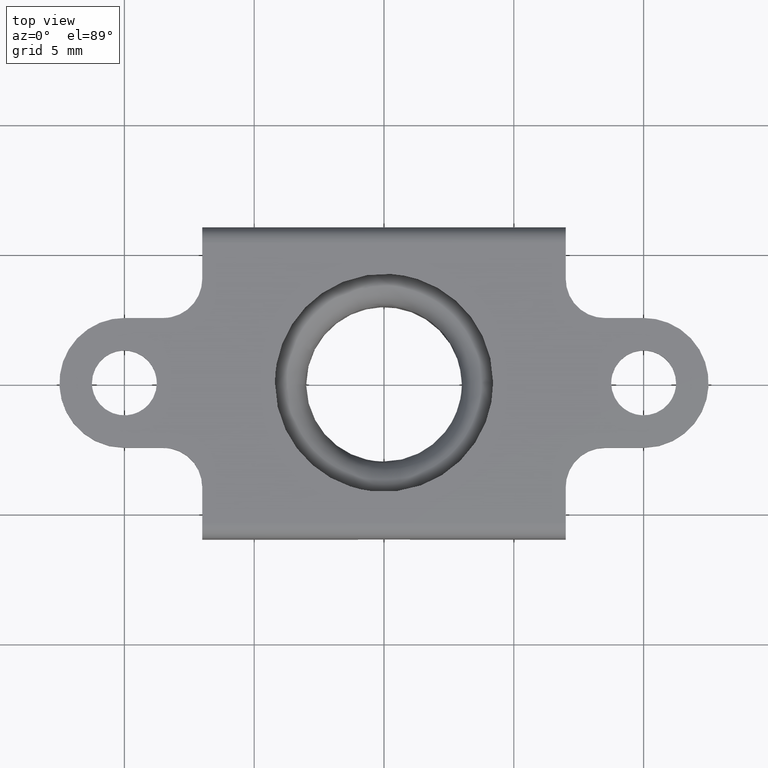
[diagram: clean part render]
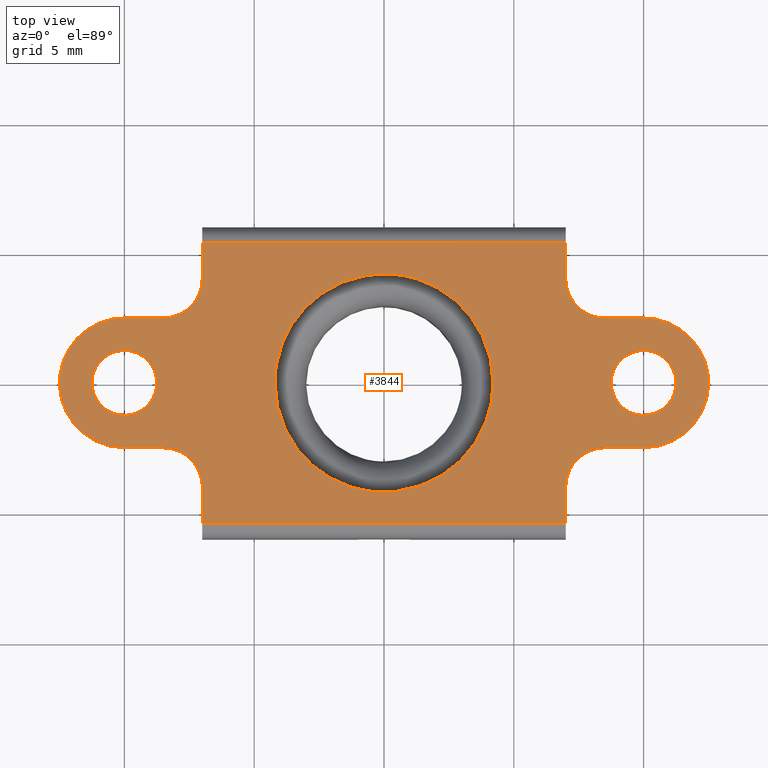
[diagram: same view with one face highlighted and labeled with its STEP entity id]
A machine part, top view. The second image highlights one B-rep face of the part: STEP entity #3844.
In plain terms, the highlighted face is a freeform B-spline surface patch.
Its self-contained STEP definition (entity closure, byte-faithful):
#1407=CARTESIAN_POINT('',(-0.495743785576096,-4.170640010725293,1.952107E-017));
#1408=VERTEX_POINT('',#1407);
#1409=CARTESIAN_POINT('',(4.200000000000000,0.0,0.0));
#1410=VERTEX_POINT('',#1409);
#1411=CARTESIAN_POINT('',(-0.495743785576096,-4.170640010725293,1.952107E-017));
#1412=CARTESIAN_POINT('',(-0.248741302555920,-4.200000000000000,0.0));
#1413=CARTESIAN_POINT('',(0.0,-4.200000000000000,0.0));
#1414=CARTESIAN_POINT('',(4.200000000000000,-4.200000000000000,0.0));
#1415=CARTESIAN_POINT('',(4.200000000000000,0.0,0.0));
#1423=(BOUNDED_CURVE()B_SPLINE_CURVE(2,(#1411,#1412,#1413,#1414,#1415),.UNSPECIFIED.,.F.,.U.)B_SPLINE_CURVE_WITH_KNOTS((3,2,3),(0.229562473514209,0.250000000000000,0.500000000000000),.UNSPECIFIED.)CURVE()GEOMETRIC_REPRESENTATION_ITEM()RATIONAL_B_SPLINE_CURVE((0.956026754185072,0.976055948331966,1.0,0.707106781186548,1.0))REPRESENTATION_ITEM(''));
#1424=EDGE_CURVE('',#1408,#1410,#1423,.T.);
#1426=CARTESIAN_POINT('',(0.256403866068306,4.192166153370501,1.994932E-017));
#1427=VERTEX_POINT('',#1426);
#1428=CARTESIAN_POINT('',(4.200000000000000,0.0,0.0));
#1429=CARTESIAN_POINT('',(4.200000000000000,3.950965480962529,0.0));
#1430=CARTESIAN_POINT('',(0.256403866068306,4.192166153370501,1.994932E-017));
#1438=(BOUNDED_CURVE()B_SPLINE_CURVE(2,(#1428,#1429,#1430),.UNSPECIFIED.,.F.,.U.)B_SPLINE_CURVE_WITH_KNOTS((3,3),(0.500000000000000,0.739332962240164),.UNSPECIFIED.)CURVE()GEOMETRIC_REPRESENTATION_ITEM()RATIONAL_B_SPLINE_CURVE((1.0,0.719603993285279,0.976072041669335))REPRESENTATION_ITEM(''));
#1439=EDGE_CURVE('',#1410,#1427,#1438,.T.);
#1506=CARTESIAN_POINT('',(-4.200000000000000,0.0,0.0));
#1507=VERTEX_POINT('',#1506);
#1508=CARTESIAN_POINT('',(-4.200000000000000,0.0,0.0));
#1509=CARTESIAN_POINT('',(-4.200000000000000,-3.730333008963838,0.0));
#1510=CARTESIAN_POINT('',(-0.495743785576096,-4.170640010725293,1.952107E-017));
#1518=(BOUNDED_CURVE()B_SPLINE_CURVE(2,(#1508,#1509,#1510),.UNSPECIFIED.,.F.,.U.)B_SPLINE_CURVE_WITH_KNOTS((3,3),(0.0,0.229562473514209),.UNSPECIFIED.)CURVE()GEOMETRIC_REPRESENTATION_ITEM()RATIONAL_B_SPLINE_CURVE((1.0,0.731050832854582,0.956026754185072))REPRESENTATION_ITEM(''));
#1519=EDGE_CURVE('',#1507,#1408,#1518,.T.);
#1553=CARTESIAN_POINT('',(0.256403866068306,4.192166153370501,1.994932E-017));
#1554=CARTESIAN_POINT('',(0.128321605876041,4.200000000000000,0.0));
#1555=CARTESIAN_POINT('',(0.0,4.200000000000000,0.0));
#1556=CARTESIAN_POINT('',(-4.200000000000000,4.200000000000000,0.0));
#1557=CARTESIAN_POINT('',(-4.200000000000000,0.0,0.0));
#1565=(BOUNDED_CURVE()B_SPLINE_CURVE(2,(#1553,#1554,#1555,#1556,#1557),.UNSPECIFIED.,.F.,.U.)B_SPLINE_CURVE_WITH_KNOTS((3,2,3),(0.739332962240165,0.750000000000000,1.0),.UNSPECIFIED.)CURVE()GEOMETRIC_REPRESENTATION_ITEM()RATIONAL_B_SPLINE_CURVE((0.976072041669337,0.987502787901269,1.0,0.707106781186548,1.0))REPRESENTATION_ITEM(''));
#1566=EDGE_CURVE('',#1427,#1507,#1565,.T.);
#1589=CARTESIAN_POINT('',(-11.250000000000000,0.0,0.0));
#1590=VERTEX_POINT('',#1589);
#1591=CARTESIAN_POINT('',(-10.098073869720260,1.246146667161652,1.994932E-017));
#1592=VERTEX_POINT('',#1591);
#1593=CARTESIAN_POINT('',(-11.250000000000000,0.0,0.0));
#1594=CARTESIAN_POINT('',(-11.249999999999998,1.155488114460305,0.0));
#1595=CARTESIAN_POINT('',(-10.098073869720258,1.246146667161653,1.994932E-017));
#1603=(BOUNDED_CURVE()B_SPLINE_CURVE(2,(#1593,#1594,#1595),.UNSPECIFIED.,.F.,.U.)B_SPLINE_CURVE_WITH_KNOTS((3,3),(0.0,0.236331300616135),.UNSPECIFIED.)CURVE()GEOMETRIC_REPRESENTATION_ITEM()RATIONAL_B_SPLINE_CURVE((1.0,0.723120658624682,0.969723356137106))REPRESENTATION_ITEM(''));
#1604=EDGE_CURVE('',#1590,#1592,#1603,.T.);
#1606=CARTESIAN_POINT('',(-9.901926130279740,-1.246146667161652,1.994932E-017));
#1607=VERTEX_POINT('',#1606);
#1608=CARTESIAN_POINT('',(-9.901926130279740,-1.246146667161652,1.994932E-017));
#1609=CARTESIAN_POINT('',(-9.950887366179682,-1.250000000000000,0.0));
#1610=CARTESIAN_POINT('',(-10.0,-1.250000000000000,0.0));
#1611=CARTESIAN_POINT('',(-11.249999999999998,-1.250000000000000,0.0));
#1612=CARTESIAN_POINT('',(-11.250000000000000,0.0,0.0));
#1620=(BOUNDED_CURVE()B_SPLINE_CURVE(2,(#1608,#1609,#1610,#1611,#1612),.UNSPECIFIED.,.F.,.U.)B_SPLINE_CURVE_WITH_KNOTS((3,2,3),(0.736331300616135,0.750000000000000,1.0),.UNSPECIFIED.)CURVE()GEOMETRIC_REPRESENTATION_ITEM()RATIONAL_B_SPLINE_CURVE((0.969723356137106,0.983986122561865,1.0,0.707106781186548,1.0))REPRESENTATION_ITEM(''));
#1621=EDGE_CURVE('',#1607,#1590,#1620,.T.);
#1688=CARTESIAN_POINT('',(-8.750000000000000,0.0,0.0));
#1689=VERTEX_POINT('',#1688);
#1690=CARTESIAN_POINT('',(-10.098073869720258,1.246146667161653,1.994932E-017));
#1691=CARTESIAN_POINT('',(-10.049112633820320,1.250000000000000,0.0));
#1692=CARTESIAN_POINT('',(-10.0,1.250000000000000,0.0));
#1693=CARTESIAN_POINT('',(-8.750000000000000,1.250000000000000,0.0));
#1694=CARTESIAN_POINT('',(-8.750000000000000,0.0,0.0));
#1702=(BOUNDED_CURVE()B_SPLINE_CURVE(2,(#1690,#1691,#1692,#1693,#1694),.UNSPECIFIED.,.F.,.U.)B_SPLINE_CURVE_WITH_KNOTS((3,2,3),(0.236331300616135,0.250000000000000,0.500000000000000),.UNSPECIFIED.)CURVE()GEOMETRIC_REPRESENTATION_ITEM()RATIONAL_B_SPLINE_CURVE((0.969723356137106,0.983986122561865,1.0,0.707106781186548,1.0))REPRESENTATION_ITEM(''));
#1703=EDGE_CURVE('',#1592,#1689,#1702,.T.);
#1737=CARTESIAN_POINT('',(-8.750000000000000,0.0,0.0));
#1738=CARTESIAN_POINT('',(-8.750000000000000,-1.155488114460304,0.0));
#1739=CARTESIAN_POINT('',(-9.901926130279740,-1.246146667161652,1.994932E-017));
#1747=(BOUNDED_CURVE()B_SPLINE_CURVE(2,(#1737,#1738,#1739),.UNSPECIFIED.,.F.,.U.)B_SPLINE_CURVE_WITH_KNOTS((3,3),(0.500000000000000,0.736331300616135),.UNSPECIFIED.)CURVE()GEOMETRIC_REPRESENTATION_ITEM()RATIONAL_B_SPLINE_CURVE((1.0,0.723120658624682,0.969723356137106))REPRESENTATION_ITEM(''));
#1748=EDGE_CURVE('',#1689,#1607,#1747,.T.);
#1775=CARTESIAN_POINT('',(10.147542793330750,1.241261907953418,1.952107E-017));
#1776=VERTEX_POINT('',#1775);
#1777=CARTESIAN_POINT('',(8.750000000000000,0.0,0.0));
#1778=VERTEX_POINT('',#1777);
#1779=CARTESIAN_POINT('',(10.147542793330754,1.241261907953418,1.952107E-017));
#1780=CARTESIAN_POINT('',(10.074030149574796,1.250000000000000,0.0));
#1781=CARTESIAN_POINT('',(10.0,1.250000000000000,0.0));
#1782=CARTESIAN_POINT('',(8.750000000000000,1.250000000000000,0.0));
#1783=CARTESIAN_POINT('',(8.750000000000000,0.0,0.0));
#1791=(BOUNDED_CURVE()B_SPLINE_CURVE(2,(#1779,#1780,#1781,#1782,#1783),.UNSPECIFIED.,.F.,.U.)B_SPLINE_CURVE_WITH_KNOTS((3,2,3),(0.229562473512974,0.250000000000000,0.500000000000000),.UNSPECIFIED.)CURVE()GEOMETRIC_REPRESENTATION_ITEM()RATIONAL_B_SPLINE_CURVE((0.956026754182653,0.976055948330520,1.0,0.707106781186548,1.0))REPRESENTATION_ITEM(''));
#1792=EDGE_CURVE('',#1776,#1778,#1791,.T.);
#1794=CARTESIAN_POINT('',(9.923689325516412,-1.247668498023357,1.994932E-017));
#1795=VERTEX_POINT('',#1794);
#1796=CARTESIAN_POINT('',(8.750000000000000,0.0,0.0));
#1797=CARTESIAN_POINT('',(8.750000000000000,-1.175882583509342,0.0));
#1798=CARTESIAN_POINT('',(9.923689325516412,-1.247668498023357,1.994932E-017));
#1806=(BOUNDED_CURVE()B_SPLINE_CURVE(2,(#1796,#1797,#1798),.UNSPECIFIED.,.F.,.U.)B_SPLINE_CURVE_WITH_KNOTS((3,3),(0.500000000000000,0.739332962223986),.UNSPECIFIED.)CURVE()GEOMETRIC_REPRESENTATION_ITEM()RATIONAL_B_SPLINE_CURVE((1.0,0.719603993304233,0.976072041634662))REPRESENTATION_ITEM(''));
#1807=EDGE_CURVE('',#1778,#1795,#1806,.T.);
#1874=CARTESIAN_POINT('',(11.250000000000000,0.0,0.0));
#1875=VERTEX_POINT('',#1874);
#1876=CARTESIAN_POINT('',(11.250000000000000,0.0,0.0));
#1877=CARTESIAN_POINT('',(11.250000000000000,1.110218157421547,0.0));
#1878=CARTESIAN_POINT('',(10.147542793330754,1.241261907953417,1.952107E-017));
#1886=(BOUNDED_CURVE()B_SPLINE_CURVE(2,(#1876,#1877,#1878),.UNSPECIFIED.,.F.,.U.)B_SPLINE_CURVE_WITH_KNOTS((3,3),(0.0,0.229562473512974),.UNSPECIFIED.)CURVE()GEOMETRIC_REPRESENTATION_ITEM()RATIONAL_B_SPLINE_CURVE((1.0,0.731050832856028,0.956026754182653))REPRESENTATION_ITEM(''));
#1887=EDGE_CURVE('',#1875,#1776,#1886,.T.);
#1921=CARTESIAN_POINT('',(9.923689325516412,-1.247668498023357,1.994932E-017));
#1922=CARTESIAN_POINT('',(9.961809045811563,-1.250000000000000,0.0));
#1923=CARTESIAN_POINT('',(10.0,-1.250000000000000,0.0));
#1924=CARTESIAN_POINT('',(11.249999999999998,-1.250000000000000,0.0));
#1925=CARTESIAN_POINT('',(11.250000000000000,0.0,0.0));
#1933=(BOUNDED_CURVE()B_SPLINE_CURVE(2,(#1921,#1922,#1923,#1924,#1925),.UNSPECIFIED.,.F.,.U.)B_SPLINE_CURVE_WITH_KNOTS((3,2,3),(0.739332962223985,0.750000000000000,1.0),.UNSPECIFIED.)CURVE()GEOMETRIC_REPRESENTATION_ITEM()RATIONAL_B_SPLINE_CURVE((0.976072041634660,0.987502787882313,1.0,0.707106781186548,1.0))REPRESENTATION_ITEM(''));
#1934=EDGE_CURVE('',#1795,#1875,#1933,.T.);
#2199=CARTESIAN_POINT('',(-7.0,-5.400000000000000,-3.306437E-016));
#2200=VERTEX_POINT('',#2199);
#2221=CARTESIAN_POINT('',(7.0,-5.400000000000000,-3.306437E-016));
#2222=VERTEX_POINT('',#2221);
#2236=CARTESIAN_POINT('',(-7.0,-5.400000000000000,-3.306437E-016));
#2237=CARTESIAN_POINT('',(7.0,-5.400000000000000,-3.306437E-016));
#2238=QUASI_UNIFORM_CURVE('',1,(#2236,#2237),.UNSPECIFIED.,.F.,.U.);
#2239=EDGE_CURVE('',#2200,#2222,#2238,.T.);
#2258=CARTESIAN_POINT('',(-7.0,5.400000000000000,3.306437E-016));
#2259=VERTEX_POINT('',#2258);
#2275=CARTESIAN_POINT('',(7.0,5.400000000000000,3.306437E-016));
#2276=VERTEX_POINT('',#2275);
#2277=CARTESIAN_POINT('',(7.0,5.400000000000000,3.306437E-016));
#2278=CARTESIAN_POINT('',(-7.0,5.400000000000000,3.306437E-016));
#2279=QUASI_UNIFORM_CURVE('',1,(#2277,#2278),.UNSPECIFIED.,.F.,.U.);
#2280=EDGE_CURVE('',#2276,#2259,#2279,.T.);
#3276=CARTESIAN_POINT('',(-8.500000000000000,2.499999999999800,-3.306437E-016));
#3277=VERTEX_POINT('',#3276);
#3283=CARTESIAN_POINT('',(-7.0,3.999999999999800,2.449213E-016));
#3284=VERTEX_POINT('',#3283);
#3285=CARTESIAN_POINT('',(-7.000000000000001,3.999999999999800,2.449213E-016));
#3286=CARTESIAN_POINT('',(-6.999999999999999,2.499999999999799,2.449213E-016));
#3287=CARTESIAN_POINT('',(-8.500000000000000,2.499999999999800,2.449213E-016));
#3295=(BOUNDED_CURVE()B_SPLINE_CURVE(2,(#3285,#3286,#3287),.UNSPECIFIED.,.F.,.U.)CURVE()GEOMETRIC_REPRESENTATION_ITEM()QUASI_UNIFORM_CURVE()RATIONAL_B_SPLINE_CURVE((1.0,0.707106781186548,1.0))REPRESENTATION_ITEM(''));
#3296=EDGE_CURVE('',#3284,#3277,#3295,.T.);
#3337=CARTESIAN_POINT('',(-7.0,-4.000000000000100,-2.449213E-016));
#3338=VERTEX_POINT('',#3337);
#3344=CARTESIAN_POINT('',(-8.500000000000000,-2.500000000000100,-3.306437E-016));
#3345=VERTEX_POINT('',#3344);
#3346=CARTESIAN_POINT('',(-8.500000000000000,-2.500000000000100,0.0));
#3347=CARTESIAN_POINT('',(-6.999999999999999,-2.500000000000100,0.0));
#3348=CARTESIAN_POINT('',(-7.000000000000001,-4.000000000000100,0.0));
#3356=(BOUNDED_CURVE()B_SPLINE_CURVE(2,(#3346,#3347,#3348),.UNSPECIFIED.,.F.,.U.)CURVE()GEOMETRIC_REPRESENTATION_ITEM()QUASI_UNIFORM_CURVE()RATIONAL_B_SPLINE_CURVE((1.0,0.707106781186548,1.0))REPRESENTATION_ITEM(''));
#3357=EDGE_CURVE('',#3345,#3338,#3356,.T.);
#3398=CARTESIAN_POINT('',(8.500000000000000,-2.500000000000100,-3.306437E-016));
#3399=VERTEX_POINT('',#3398);
#3405=CARTESIAN_POINT('',(7.0,-4.000000000000100,-2.449213E-016));
#3406=VERTEX_POINT('',#3405);
#3407=CARTESIAN_POINT('',(7.000000000000001,-4.000000000000100,-2.449213E-016));
#3408=CARTESIAN_POINT('',(6.999999999999999,-2.500000000000100,-2.449213E-016));
#3409=CARTESIAN_POINT('',(8.500000000000000,-2.500000000000100,-2.449213E-016));
#3417=(BOUNDED_CURVE()B_SPLINE_CURVE(2,(#3407,#3408,#3409),.UNSPECIFIED.,.F.,.U.)CURVE()GEOMETRIC_REPRESENTATION_ITEM()QUASI_UNIFORM_CURVE()RATIONAL_B_SPLINE_CURVE((1.0,0.707106781186548,1.0))REPRESENTATION_ITEM(''));
#3418=EDGE_CURVE('',#3406,#3399,#3417,.T.);
#3459=CARTESIAN_POINT('',(7.0,3.999999999999800,2.449213E-016));
#3460=VERTEX_POINT('',#3459);
#3466=CARTESIAN_POINT('',(8.500000000000000,2.499999999999800,-3.306437E-016));
#3467=VERTEX_POINT('',#3466);
#3468=CARTESIAN_POINT('',(8.500000000000000,2.499999999999800,0.0));
#3469=CARTESIAN_POINT('',(6.999999999999999,2.499999999999799,0.0));
#3470=CARTESIAN_POINT('',(7.000000000000001,3.999999999999800,0.0));
#3478=(BOUNDED_CURVE()B_SPLINE_CURVE(2,(#3468,#3469,#3470),.UNSPECIFIED.,.F.,.U.)CURVE()GEOMETRIC_REPRESENTATION_ITEM()QUASI_UNIFORM_CURVE()RATIONAL_B_SPLINE_CURVE((1.0,0.707106781186548,1.0))REPRESENTATION_ITEM(''));
#3479=EDGE_CURVE('',#3467,#3460,#3478,.T.);
#3507=CARTESIAN_POINT('',(-10.0,-2.500000000000100,0.0));
#3508=VERTEX_POINT('',#3507);
#3509=CARTESIAN_POINT('',(-10.0,2.500000000000000,0.0));
#3510=VERTEX_POINT('',#3509);
#3511=CARTESIAN_POINT('',(-10.0,-2.500000000000100,0.0));
#3512=CARTESIAN_POINT('',(-12.500000000000000,-2.500000000000000,0.0));
#3513=CARTESIAN_POINT('',(-12.500000000000000,0.0,0.0));
#3514=CARTESIAN_POINT('',(-12.500000000000000,2.500000000000000,0.0));
#3515=CARTESIAN_POINT('',(-10.0,2.500000000000000,0.0));
#3523=(BOUNDED_CURVE()B_SPLINE_CURVE(2,(#3511,#3512,#3513,#3514,#3515),.UNSPECIFIED.,.F.,.U.)B_SPLINE_CURVE_WITH_KNOTS((3,2,3),(0.0,0.500000000000000,1.0),.UNSPECIFIED.)CURVE()GEOMETRIC_REPRESENTATION_ITEM()RATIONAL_B_SPLINE_CURVE((1.0,0.707106781186548,1.0,0.707106781186548,1.0))REPRESENTATION_ITEM(''));
#3524=EDGE_CURVE('',#3508,#3510,#3523,.T.);
#3569=CARTESIAN_POINT('',(-8.500000000000000,-2.500000000000100,-3.306437E-016));
#3570=CARTESIAN_POINT('',(-10.0,-2.500000000000100,0.0));
#3571=QUASI_UNIFORM_CURVE('',1,(#3569,#3570),.UNSPECIFIED.,.F.,.U.);
#3572=EDGE_CURVE('',#3345,#3508,#3571,.T.);
#3583=CARTESIAN_POINT('',(-10.0,2.500000000000000,0.0));
#3584=CARTESIAN_POINT('',(-8.500000000000000,2.499999999999800,-3.306437E-016));
#3585=QUASI_UNIFORM_CURVE('',1,(#3583,#3584),.UNSPECIFIED.,.F.,.U.);
#3586=EDGE_CURVE('',#3510,#3277,#3585,.T.);
#3616=CARTESIAN_POINT('',(10.0,-2.500000000000100,0.0));
#3617=VERTEX_POINT('',#3616);
#3618=CARTESIAN_POINT('',(10.0,2.500000000000000,0.0));
#3619=VERTEX_POINT('',#3618);
#3620=CARTESIAN_POINT('',(10.0,-2.500000000000100,0.0));
#3621=CARTESIAN_POINT('',(12.500000000000000,-2.500000000000000,0.0));
#3622=CARTESIAN_POINT('',(12.500000000000000,0.0,0.0));
#3623=CARTESIAN_POINT('',(12.500000000000000,2.500000000000000,0.0));
#3624=CARTESIAN_POINT('',(10.0,2.500000000000000,0.0));
#3632=(BOUNDED_CURVE()B_SPLINE_CURVE(2,(#3620,#3621,#3622,#3623,#3624),.UNSPECIFIED.,.F.,.U.)B_SPLINE_CURVE_WITH_KNOTS((3,2,3),(0.0,0.500000000000000,1.0),.UNSPECIFIED.)CURVE()GEOMETRIC_REPRESENTATION_ITEM()RATIONAL_B_SPLINE_CURVE((1.0,0.707106781186548,1.0,0.707106781186548,1.0))REPRESENTATION_ITEM(''));
#3633=EDGE_CURVE('',#3617,#3619,#3632,.T.);
#3672=CARTESIAN_POINT('',(8.500000000000000,-2.500000000000100,-3.306437E-016));
#3673=CARTESIAN_POINT('',(10.0,-2.500000000000100,0.0));
#3674=QUASI_UNIFORM_CURVE('',1,(#3672,#3673),.UNSPECIFIED.,.F.,.U.);
#3675=EDGE_CURVE('',#3399,#3617,#3674,.T.);
#3698=CARTESIAN_POINT('',(10.0,2.500000000000000,0.0));
#3699=CARTESIAN_POINT('',(8.500000000000000,2.499999999999800,-3.306437E-016));
#3700=QUASI_UNIFORM_CURVE('',1,(#3698,#3699),.UNSPECIFIED.,.F.,.U.);
#3701=EDGE_CURVE('',#3619,#3467,#3700,.T.);
#3720=CARTESIAN_POINT('',(7.0,3.999999999999800,2.449213E-016));
#3721=CARTESIAN_POINT('',(7.0,5.400000000000000,3.306437E-016));
#3722=QUASI_UNIFORM_CURVE('',1,(#3720,#3721),.UNSPECIFIED.,.F.,.U.);
#3723=EDGE_CURVE('',#3460,#2276,#3722,.T.);
#3770=CARTESIAN_POINT('',(-7.0,3.999999999999800,2.449213E-016));
#3771=CARTESIAN_POINT('',(-7.0,5.400000000000000,3.306437E-016));
#3772=QUASI_UNIFORM_CURVE('',1,(#3770,#3771),.UNSPECIFIED.,.F.,.U.);
#3773=EDGE_CURVE('',#3284,#2259,#3772,.T.);
#3795=CARTESIAN_POINT('',(-13.748749951545140,-5.939460080450178,-3.673819E-016));
#3796=CARTESIAN_POINT('',(-13.748749951545140,5.939460273569226,-3.673819E-016));
#3797=CARTESIAN_POINT('',(13.748750622097390,-5.939460080450178,-3.673819E-016));
#3798=CARTESIAN_POINT('',(13.748750622097390,5.939460273569226,-3.673819E-016));
#3799=B_SPLINE_SURFACE_WITH_KNOTS('',1,1,((#3795,#3797),(#3796,#3798)),.UNSPECIFIED.,.F.,.F.,.U.,(2,2),(2,2),(0.0,11.878920354019399),(0.0,27.497500573642530),.UNSPECIFIED.);
#3800=ORIENTED_EDGE('',*,*,#3723,.T.);
#3801=ORIENTED_EDGE('',*,*,#2280,.T.);
#3802=ORIENTED_EDGE('',*,*,#3773,.F.);
#3803=ORIENTED_EDGE('',*,*,#3296,.T.);
#3804=ORIENTED_EDGE('',*,*,#3586,.F.);
#3805=ORIENTED_EDGE('',*,*,#3524,.F.);
#3806=ORIENTED_EDGE('',*,*,#3572,.F.);
#3807=ORIENTED_EDGE('',*,*,#3357,.T.);
#3808=CARTESIAN_POINT('',(-7.0,-5.400000000000000,-3.306437E-016));
#3809=CARTESIAN_POINT('',(-7.0,-4.000000000000100,-2.449213E-016));
#3810=QUASI_UNIFORM_CURVE('',1,(#3808,#3809),.UNSPECIFIED.,.F.,.U.);
#3811=EDGE_CURVE('',#2200,#3338,#3810,.T.);
#3812=ORIENTED_EDGE('',*,*,#3811,.F.);
#3813=ORIENTED_EDGE('',*,*,#2239,.T.);
#3814=CARTESIAN_POINT('',(7.0,-5.400000000000000,-3.306437E-016));
#3815=CARTESIAN_POINT('',(7.0,-4.000000000000100,-2.449213E-016));
#3816=QUASI_UNIFORM_CURVE('',1,(#3814,#3815),.UNSPECIFIED.,.F.,.U.);
#3817=EDGE_CURVE('',#2222,#3406,#3816,.T.);
#3818=ORIENTED_EDGE('',*,*,#3817,.T.);
#3819=ORIENTED_EDGE('',*,*,#3418,.T.);
#3820=ORIENTED_EDGE('',*,*,#3675,.T.);
#3821=ORIENTED_EDGE('',*,*,#3633,.T.);
#3822=ORIENTED_EDGE('',*,*,#3701,.T.);
#3823=ORIENTED_EDGE('',*,*,#3479,.T.);
#3824=EDGE_LOOP('',(#3800,#3801,#3802,#3803,#3804,#3805,#3806,#3807,#3812,#3813,#3818,#3819,#3820,#3821,#3822,#3823));
#3825=FACE_OUTER_BOUND('',#3824,.T.);
#3826=ORIENTED_EDGE('',*,*,#1807,.F.);
#3827=ORIENTED_EDGE('',*,*,#1792,.F.);
#3828=ORIENTED_EDGE('',*,*,#1887,.F.);
#3829=ORIENTED_EDGE('',*,*,#1934,.F.);
#3830=EDGE_LOOP('',(#3826,#3827,#3828,#3829));
#3831=FACE_BOUND('',#3830,.T.);
#3832=ORIENTED_EDGE('',*,*,#1748,.T.);
#3833=ORIENTED_EDGE('',*,*,#1621,.T.);
#3834=ORIENTED_EDGE('',*,*,#1604,.T.);
#3835=ORIENTED_EDGE('',*,*,#1703,.T.);
#3836=EDGE_LOOP('',(#3832,#3833,#3834,#3835));
#3837=FACE_BOUND('',#3836,.T.);
#3838=ORIENTED_EDGE('',*,*,#1439,.F.);
#3839=ORIENTED_EDGE('',*,*,#1424,.F.);
#3840=ORIENTED_EDGE('',*,*,#1519,.F.);
#3841=ORIENTED_EDGE('',*,*,#1566,.F.);
#3842=EDGE_LOOP('',(#3838,#3839,#3840,#3841));
#3843=FACE_BOUND('',#3842,.T.);
#3844=ADVANCED_FACE('',(#3825,#3831,#3837,#3843),#3799,.F.);